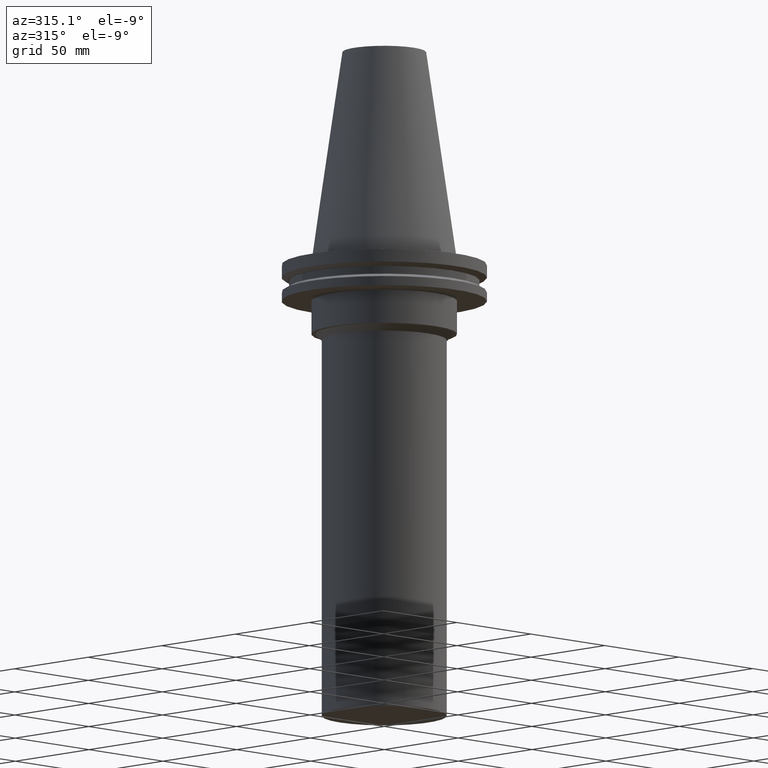
[diagram: clean part render]
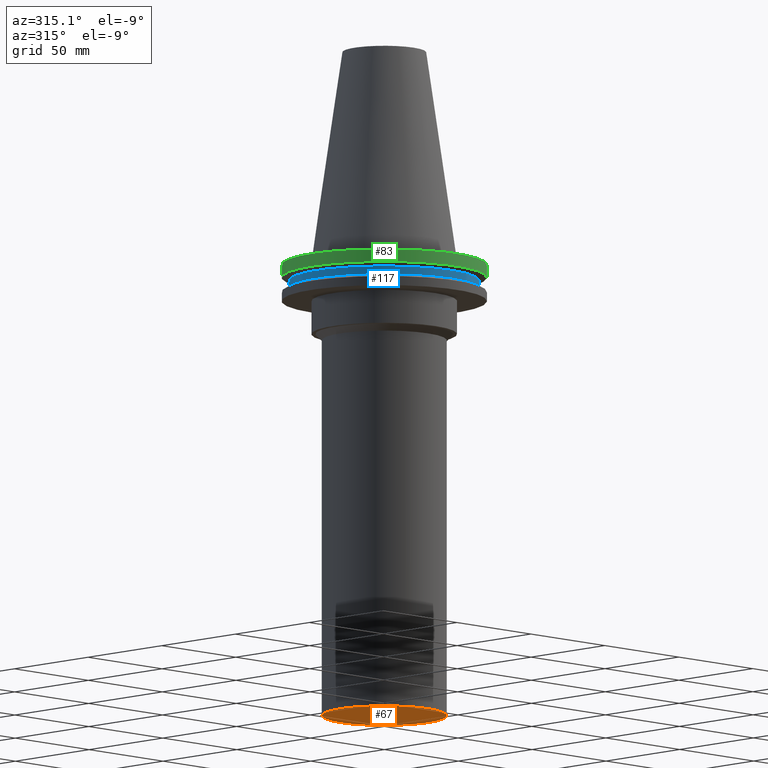
[diagram: same view with three faces highlighted in distinct colors, each labeled with its STEP entity id]
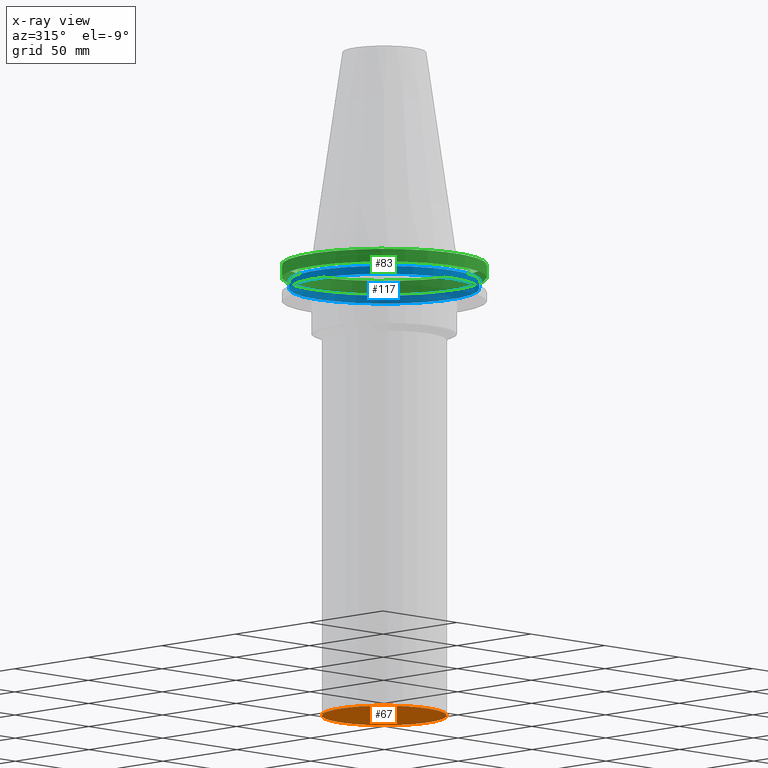
[diagram: x-ray of the same camera — body ghosted, the three highlighted faces saturated]
A machine part, auxiliary view with three faces highlighted in distinct colors.
The next image is the same camera in x-ray (body ghosted, the three faces saturated) — at least one of them is partly hidden behind the body in this view.
Their STEP definitions:

[orange] entity #67 — the highlighted planar face has unit normal (0, 0, -1).
#67=ADVANCED_FACE('Unnamed[1]',(#174),#175,.T.);
#80=EDGE_CURVE('Unnamed[1]',#193,#193,#194,.T.);
#174=FACE_OUTER_BOUND('',#318,.T.);
#175=PLANE('',#319);
#193=VERTEX_POINT('',#341);
#194=CIRCLE('',#342,29.9999999999999);
#318=EDGE_LOOP('',(#483));
#319=AXIS2_PLACEMENT_3D('',#484,#485,#486);
#341=CARTESIAN_POINT('',(1.34711147906209E-014,29.9999999999999,-220.0));
#342=AXIS2_PLACEMENT_3D('',#503,#504,#505);
#483=ORIENTED_EDGE('',*,*,#80,.T.);
#484=CARTESIAN_POINT('',(1.34711147906209E-014,15.0,-220.0));
#485=DIRECTION('',(6.12323399573677E-017,1.22464679914735E-016,-1.0));
#486=DIRECTION('',(-1.23259516440783E-032,1.0,1.22464679914735E-016));
#503=CARTESIAN_POINT('',(1.34711147906209E-014,7.11303530755864E-014,-220.0));
#504=DIRECTION('',(6.12323399573676E-017,4.32878246115818E-016,-1.0));
#505=DIRECTION('',(-3.13333006570819E-032,1.0,4.32878246115818E-016));

[blue] entity #117 — the highlighted cylindrical surface (bore or boss wall) has radius 45.645 mm, axis along (0, 0, -1).
#103=EDGE_CURVE('Unnamed[1]',#229,#229,#230,.T.);
#114=EDGE_CURVE('Unnamed[1]',#246,#246,#247,.T.);
#117=ADVANCED_FACE('Unnamed[1]',(#250,#251),#252,.T.);
#229=VERTEX_POINT('',#386);
#230=CIRCLE('',#387,45.6449999999999);
#246=VERTEX_POINT('',#408);
#247=CIRCLE('',#409,45.6449999999999);
#250=FACE_BOUND('',#413,.T.);
#251=FACE_BOUND('',#414,.T.);
#252=CYLINDRICAL_SURFACE('',#415,45.6449999999999);
#386=CARTESIAN_POINT('',(7.98469713044071E-016,45.6449999999999,-13.04));
#387=AXIS2_PLACEMENT_3D('',#544,#545,#546);
#408=CARTESIAN_POINT('',(5.63337527607778E-016,45.6449999999999,-9.19999999999993));
#409=AXIS2_PLACEMENT_3D('',#562,#563,#564);
#413=EDGE_LOOP('',(#566));
#414=EDGE_LOOP('',(#567));
#415=AXIS2_PLACEMENT_3D('',#568,#569,#570);
#544=CARTESIAN_POINT('',(7.98469713044072E-016,-1.84581287405368E-014,-13.04));
#545=DIRECTION('',(6.12323399573677E-017,4.32878246115772E-016,-1.0));
#546=DIRECTION('',(-3.13333006570683E-032,1.0,4.32878246115772E-016));
#562=CARTESIAN_POINT('',(5.63337527607778E-016,-2.01203812056214E-014,-9.19999999999993));
#563=DIRECTION('',(6.12323399573677E-017,4.32878246115772E-016,-1.0));
#564=DIRECTION('',(-3.13333006570683E-032,1.0,4.32878246115772E-016));
#566=ORIENTED_EDGE('',*,*,#103,.F.);
#567=ORIENTED_EDGE('',*,*,#114,.T.);
#568=CARTESIAN_POINT('',(6.80903620325925E-016,-1.92892549730791E-014,-11.1199999999999));
#569=DIRECTION('',(6.12323399573677E-017,4.32878246115772E-016,-1.0));
#570=DIRECTION('',(-3.13333006570683E-032,1.0,4.32878246115772E-016));

[green] entity #83 — the highlighted cylindrical surface (bore or boss wall) has radius 49.2125 mm, axis along (0, 0, -1).
#83=ADVANCED_FACE('Unnamed[1]',(#197,#198),#199,.T.);
#107=EDGE_CURVE('Unnamed[1]',#235,#235,#236,.T.);
#133=EDGE_CURVE('Unnamed[1]',#277,#277,#278,.T.);
#197=FACE_BOUND('',#346,.T.);
#198=FACE_BOUND('',#347,.T.);
#199=CYLINDRICAL_SURFACE('',#348,49.2125);
#235=VERTEX_POINT('',#394);
#236=CIRCLE('',#395,49.2125000000001);
#277=VERTEX_POINT('',#446);
#278=CIRCLE('',#447,49.2124999999999);
#346=EDGE_LOOP('',(#507));
#347=EDGE_LOOP('',(#508));
#348=AXIS2_PLACEMENT_3D('',#509,#510,#511);
#394=CARTESIAN_POINT('',(4.65059621976208E-016,49.2125,-7.59500000000002));
#395=AXIS2_PLACEMENT_3D('',#550,#551,#552);
#446=CARTESIAN_POINT('',(9.18485099360509E-017,49.2124999999999,-1.49999999999999));
#447=AXIS2_PLACEMENT_3D('',#598,#599,#600);
#507=ORIENTED_EDGE('',*,*,#107,.F.);
#508=ORIENTED_EDGE('',*,*,#133,.T.);
#509=CARTESIAN_POINT('',(2.78454065956132E-016,-2.2134347245675E-014,-4.54750000000004));
#510=DIRECTION('',(6.12323399573677E-017,4.32878246115773E-016,-1.0));
#511=DIRECTION('',(-3.13333006570746E-032,1.0,4.32878246115773E-016));
#550=CARTESIAN_POINT('',(4.65059621976211E-016,-2.08151507906372E-014,-7.59500000000006));
#551=DIRECTION('',(6.12323399573677E-017,4.32878246115773E-016,-1.0));
#552=DIRECTION('',(-3.13333006570745E-032,1.0,4.32878246115773E-016));
#598=CARTESIAN_POINT('',(9.18485099360532E-017,-2.34535437007129E-014,-1.50000000000003));
#599=DIRECTION('',(6.12323399573677E-017,4.32878246115774E-016,-1.0));
#600=DIRECTION('',(-3.13333006570746E-032,1.0,4.32878246115774E-016));